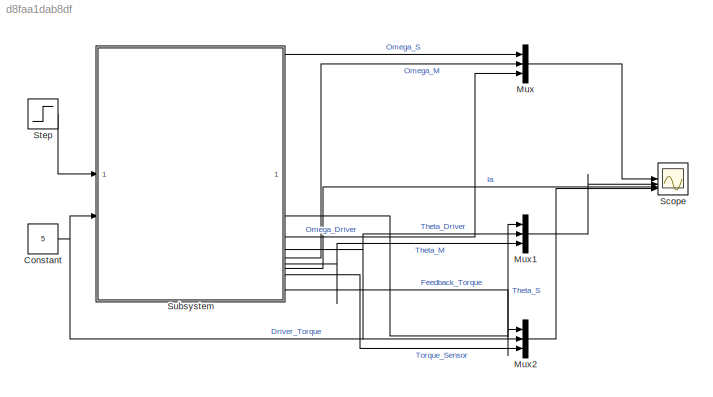
MODEL slx_d8faa1dab8df
KIND model
CONFIG AbsTol = auto
CONFIG EnableMultiTasking = off
CONFIG FixedStep = auto
CONFIG MaxStep = auto
CONFIG MinStep = auto
CONFIG RelTol = 1e-3
CONFIG SampleTimeConstraint = Unconstrained
CONFIG SolverName = VariableStepAuto
CONFIG StartTime = 0.0
CONFIG StopTime = 5
BLOCK [Constant] Constant
  Value = 5
BLOCK [Mux] Mux
  DisplayOption = bar
  Inputs = 3
BLOCK [Mux] Mux1
  DisplayOption = bar
  Inputs = 3
BLOCK [Mux] Mux2
  DisplayOption = bar
  Inputs = 3
BLOCK [Scope] Scope
  Floating = off
  NumInputPorts = 4
  ScopeSpecificationString = Simulink.scopes.TimeScopeBlockCfg('CurrentConfiguration', extmgr.ConfigurationSet(extmgr.Configuration('Core','General UI',true),extmgr.Configuration('Core','Source UI',true),extmgr.Configuration('Sources','WiredSimulink',true),extmgr.Configuration('Visuals','Time Domain',true,'SerializedDisplays',{struct('MinYLimReal','-15.29455','MaxYLimReal','58.05505','YLabelReal','','MinYLimMag','0.00000','Ma...<+3946ch>
BLOCK [Step] Step
  After = 6
  SampleTime = 0
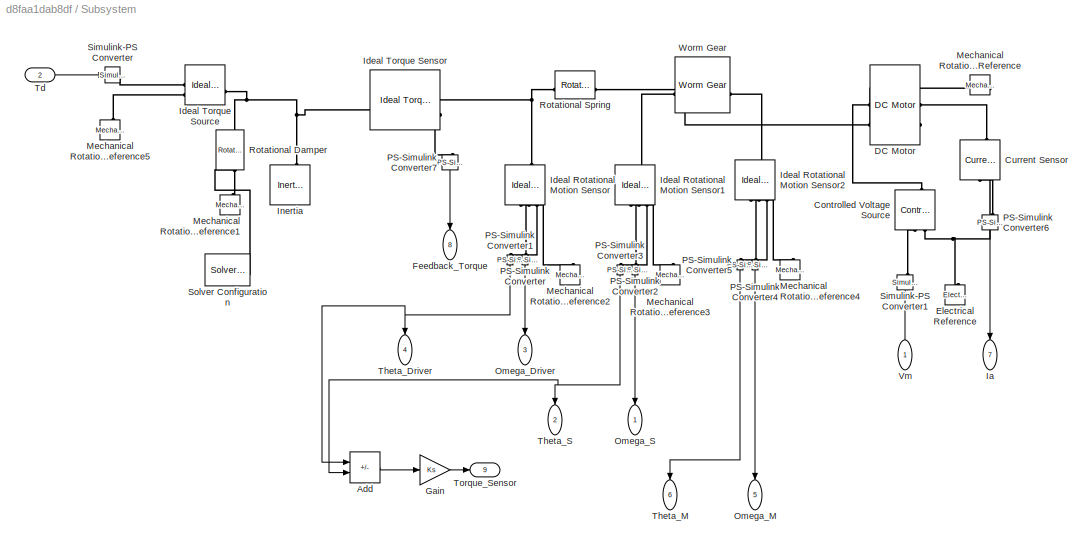
BLOCK [SubSystem] Subsystem
BLOCK [Sum] Subsystem/Add
  IconShape = rectangular
  Inputs = +-
BLOCK [Reference] Subsystem/Controlled Voltage Source  REF=fl_lib/Electrical/Electrical Sources/Controlled Voltage
Source
  NameLocation = right
  SourceBlock = fl_lib/Electrical/Electrical Sources/Controlled Voltage\nSource
  SourceType = Controlled Voltage\nSource
BLOCK [Reference] Subsystem/Current Sensor  REF=fl_lib/Electrical/Electrical Sensors/Current Sensor
  NameLocation = left
  SourceBlock = fl_lib/Electrical/Electrical Sensors/Current Sensor
  SourceType = Current Sensor
BLOCK [Reference] Subsystem/DC Motor  REF=ee_lib/Electromechanical/Brushed Motors/DC Motor
  NameLocation = top
  SourceBlock = ee_lib/Electromechanical/Brushed Motors/DC Motor
  SourceType = DC Motor
BLOCK [Reference] Subsystem/Electrical Reference  REF=fl_lib/Electrical/Electrical Elements/Electrical Reference
  NameLocation = right
  SourceBlock = fl_lib/Electrical/Electrical Elements/Electrical Reference
  SourceType = Electrical Reference
BLOCK [Outport] Subsystem/Feedback_Torque
  NameLocation = left
  Port = 8
BLOCK [Gain] Subsystem/Gain
  Gain = Ks
BLOCK [Outport] Subsystem/Ia
  NameLocation = left
  Port = 7
BLOCK [Reference] Subsystem/Ideal Rotational Motion Sensor  REF=fl_lib/Mechanical/Mechanical Sensors/Ideal Rotational
Motion Sensor
  NameLocation = left
  SourceBlock = fl_lib/Mechanical/Mechanical Sensors/Ideal Rotational\nMotion Sensor
  SourceType = Ideal Rotational\nMotion Sensor
BLOCK [Reference] Subsystem/Ideal Rotational Motion Sensor1  REF=fl_lib/Mechanical/Mechanical Sensors/Ideal Rotational
Motion Sensor
  NameLocation = left
  SourceBlock = fl_lib/Mechanical/Mechanical Sensors/Ideal Rotational\nMotion Sensor
  SourceType = Ideal Rotational\nMotion Sensor
BLOCK [Reference] Subsystem/Ideal Rotational Motion Sensor2  REF=fl_lib/Mechanical/Mechanical Sensors/Ideal Rotational
Motion Sensor
  NameLocation = left
  SourceBlock = fl_lib/Mechanical/Mechanical Sensors/Ideal Rotational\nMotion Sensor
  SourceType = Ideal Rotational\nMotion Sensor
BLOCK [Reference] Subsystem/Ideal Torque Sensor  REF=fl_lib/Mechanical/Mechanical Sensors/Ideal Torque Sensor
  SourceBlock = fl_lib/Mechanical/Mechanical Sensors/Ideal Torque Sensor
  SourceType = Ideal Torque Sensor
BLOCK [Reference] Subsystem/Ideal Torque Source  REF=fl_lib/Mechanical/Mechanical Sources/Ideal Torque Source
  SourceBlock = fl_lib/Mechanical/Mechanical Sources/Ideal Torque Source
  SourceType = Ideal Torque Source
BLOCK [Reference] Subsystem/Inertia  REF=fl_lib/Mechanical/Rotational Elements/Inertia
  NameLocation = right
  SourceBlock = fl_lib/Mechanical/Rotational Elements/Inertia
  SourceType = Inertia
BLOCK [Reference] Subsystem/Mechanical Rotational Reference  REF=fl_lib/Mechanical/Rotational Elements/Mechanical
Rotational Reference
  NameLocation = top
  SourceBlock = fl_lib/Mechanical/Rotational Elements/Mechanical\nRotational Reference
  SourceType = Mechanical\nRotational Reference
BLOCK [Reference] Subsystem/Mechanical Rotational Reference1  REF=fl_lib/Mechanical/Rotational Elements/Mechanical
Rotational Reference
  NameLocation = right
  SourceBlock = fl_lib/Mechanical/Rotational Elements/Mechanical\nRotational Reference
  SourceType = Mechanical\nRotational Reference
BLOCK [Reference] Subsystem/Mechanical Rotational Reference2  REF=fl_lib/Mechanical/Rotational Elements/Mechanical
Rotational Reference
  NameLocation = right
  SourceBlock = fl_lib/Mechanical/Rotational Elements/Mechanical\nRotational Reference
  SourceType = Mechanical\nRotational Reference
BLOCK [Reference] Subsystem/Mechanical Rotational Reference3  REF=fl_lib/Mechanical/Rotational Elements/Mechanical
Rotational Reference
  NameLocation = right
  SourceBlock = fl_lib/Mechanical/Rotational Elements/Mechanical\nRotational Reference
  SourceType = Mechanical\nRotational Reference
BLOCK [Reference] Subsystem/Mechanical Rotational Reference4  REF=fl_lib/Mechanical/Rotational Elements/Mechanical
Rotational Reference
  NameLocation = right
  SourceBlock = fl_lib/Mechanical/Rotational Elements/Mechanical\nRotational Reference
  SourceType = Mechanical\nRotational Reference
BLOCK [Reference] Subsystem/Mechanical Rotational Reference5  REF=fl_lib/Mechanical/Rotational Elements/Mechanical
Rotational Reference
  NameLocation = right
  SourceBlock = fl_lib/Mechanical/Rotational Elements/Mechanical\nRotational Reference
  SourceType = Mechanical\nRotational Reference
BLOCK [Outport] Subsystem/Omega_Driver
  NameLocation = left
  Port = 3
BLOCK [Outport] Subsystem/Omega_M
  NameLocation = left
  Port = 5
BLOCK [Outport] Subsystem/Omega_S
  NameLocation = left
BLOCK [Reference] Subsystem/PS-Simulink Converter  REF=nesl_utility/PS-Simulink
Converter
  NameLocation = left
  SourceBlock = nesl_utility/PS-Simulink\nConverter
  SourceType = PS-Simulink\nConverter
BLOCK [Reference] Subsystem/PS-Simulink Converter1  REF=nesl_utility/PS-Simulink
Converter
  NameLocation = left
  SourceBlock = nesl_utility/PS-Simulink\nConverter
  SourceType = PS-Simulink\nConverter
BLOCK [Reference] Subsystem/PS-Simulink Converter2  REF=nesl_utility/PS-Simulink
Converter
  NameLocation = left
  SourceBlock = nesl_utility/PS-Simulink\nConverter
  SourceType = PS-Simulink\nConverter
BLOCK [Reference] Subsystem/PS-Simulink Converter3  REF=nesl_utility/PS-Simulink
Converter
  NameLocation = left
  SourceBlock = nesl_utility/PS-Simulink\nConverter
  SourceType = PS-Simulink\nConverter
BLOCK [Reference] Subsystem/PS-Simulink Converter4  REF=nesl_utility/PS-Simulink
Converter
  NameLocation = left
  SourceBlock = nesl_utility/PS-Simulink\nConverter
  SourceType = PS-Simulink\nConverter
BLOCK [Reference] Subsystem/PS-Simulink Converter5  REF=nesl_utility/PS-Simulink
Converter
  NameLocation = left
  SourceBlock = nesl_utility/PS-Simulink\nConverter
  SourceType = PS-Simulink\nConverter
BLOCK [Reference] Subsystem/PS-Simulink Converter6  REF=nesl_utility/PS-Simulink
Converter
  NameLocation = left
  SourceBlock = nesl_utility/PS-Simulink\nConverter
  SourceType = PS-Simulink\nConverter
BLOCK [Reference] Subsystem/PS-Simulink Converter7  REF=nesl_utility/PS-Simulink
Converter
  NameLocation = left
  SourceBlock = nesl_utility/PS-Simulink\nConverter
  SourceType = PS-Simulink\nConverter
BLOCK [Reference] Subsystem/Rotational Damper  REF=fl_lib/Mechanical/Rotational Elements/Rotational Damper
  NameLocation = left
  SourceBlock = fl_lib/Mechanical/Rotational Elements/Rotational Damper
  SourceType = Rotational Damper
BLOCK [Reference] Subsystem/Rotational Spring  REF=fl_lib/Mechanical/Rotational Elements/Rotational Spring
  SourceBlock = fl_lib/Mechanical/Rotational Elements/Rotational Spring
  SourceType = Rotational Spring
BLOCK [Reference] Subsystem/Simulink-PS Converter  REF=nesl_utility/Simulink-PS
Converter
  SourceBlock = nesl_utility/Simulink-PS\nConverter
  SourceType = Simulink-PS\nConverter
BLOCK [Reference] Subsystem/Simulink-PS Converter1  REF=nesl_utility/Simulink-PS
Converter
  NameLocation = right
  SourceBlock = nesl_utility/Simulink-PS\nConverter
  SourceType = Simulink-PS\nConverter
BLOCK [Reference] Subsystem/Solver Configuration  REF=nesl_utility/Solver
Configuration
  SourceBlock = nesl_utility/Solver\nConfiguration
  SourceType = Solver\nConfiguration
BLOCK [Inport] Subsystem/Td
  Port = 2
BLOCK [Outport] Subsystem/Theta_Driver
  NameLocation = left
  Port = 4
BLOCK [Outport] Subsystem/Theta_M
  NameLocation = left
  Port = 6
BLOCK [Outport] Subsystem/Theta_S
  NameLocation = left
  Port = 2
BLOCK [Outport] Subsystem/Torque_Sensor
  Port = 9
BLOCK [Inport] Subsystem/Vm
  NameLocation = right
BLOCK [Reference] Subsystem/Worm Gear  REF=sdl_lib/Gears/Worm Gear
  NameLocation = top
  SourceBlock = sdl_lib/Gears/Worm Gear
  SourceType = Worm Gear
NET Constant:1 -> Mux2:2, Subsystem:2
LINE Mux1:1 -> Scope:2
LINE Mux2:1 -> Scope:4
LINE Mux:1 -> Scope:1
LINE Step:1 -> Subsystem:1
LINE Subsystem/Add:1 -> Subsystem/Gain:1
LINE Subsystem/Gain:1 -> Subsystem/Torque_Sensor:1
NET Subsystem/PS-Simulink Converter1:1 -> Subsystem/Add:1, Subsystem/Theta_Driver:1
LINE Subsystem/PS-Simulink Converter2:1 -> Subsystem/Omega_S:1
NET Subsystem/PS-Simulink Converter3:1 -> Subsystem/Add:2, Subsystem/Theta_S:1
LINE Subsystem/PS-Simulink Converter4:1 -> Subsystem/Omega_M:1
LINE Subsystem/PS-Simulink Converter5:1 -> Subsystem/Theta_M:1
LINE Subsystem/PS-Simulink Converter6:1 -> Subsystem/Ia:1
LINE Subsystem/PS-Simulink Converter7:1 -> Subsystem/Feedback_Torque:1
LINE Subsystem/PS-Simulink Converter:1 -> Subsystem/Omega_Driver:1
LINE Subsystem/Td:1 -> Subsystem/Simulink-PS Converter:1
LINE Subsystem/Vm:1 -> Subsystem/Simulink-PS Converter1:1
LINE Subsystem:1 -> Mux:1
LINE Subsystem:2 -> Mux1:1
LINE Subsystem:3 -> Mux:3
LINE Subsystem:4 -> Mux1:2
LINE Subsystem:5 -> Mux:2
LINE Subsystem:6 -> Mux1:3
LINE Subsystem:7 -> Scope:3
LINE Subsystem:8 -> Mux2:1
LINE Subsystem:9 -> Mux2:3
PLINE Subsystem/Controlled Voltage Source:LConn1 -- Subsystem/DC Motor:LConn1
PLINE Subsystem/Controlled Voltage Source:RConn1 -- Subsystem/Simulink-PS Converter1:RConn1
PNET net1: Subsystem/Controlled Voltage Source:RConn2 -- Subsystem/Current Sensor:RConn2 -- Subsystem/Electrical Reference:LConn1
PLINE Subsystem/Current Sensor:LConn1 -- Subsystem/DC Motor:RConn1
PLINE Subsystem/Current Sensor:RConn1 -- Subsystem/PS-Simulink Converter6:LConn1
PNET net2: Subsystem/DC Motor:LConn2 -- Subsystem/Ideal Rotational Motion Sensor2:LConn1 -- Subsystem/Worm Gear:LConn1
PLINE Subsystem/DC Motor:RConn2 -- Subsystem/Mechanical Rotational Reference:LConn1
PNET net3: Subsystem/Ideal Rotational Motion Sensor1:LConn1 -- Subsystem/Rotational Spring:RConn1 -- Subsystem/Worm Gear:RConn1
PLINE Subsystem/Ideal Rotational Motion Sensor1:RConn1 -- Subsystem/Mechanical Rotational Reference3:LConn1
PLINE Subsystem/Ideal Rotational Motion Sensor1:RConn2 -- Subsystem/PS-Simulink Converter2:LConn1
PLINE Subsystem/Ideal Rotational Motion Sensor1:RConn3 -- Subsystem/PS-Simulink Converter3:LConn1
PLINE Subsystem/Ideal Rotational Motion Sensor2:RConn1 -- Subsystem/Mechanical Rotational Reference4:LConn1
PLINE Subsystem/Ideal Rotational Motion Sensor2:RConn2 -- Subsystem/PS-Simulink Converter4:LConn1
PLINE Subsystem/Ideal Rotational Motion Sensor2:RConn3 -- Subsystem/PS-Simulink Converter5:LConn1
PNET net4: Subsystem/Ideal Rotational Motion Sensor:LConn1 -- Subsystem/Ideal Torque Sensor:RConn1 -- Subsystem/Rotational Spring:LConn1
PLINE Subsystem/Ideal Rotational Motion Sensor:RConn1 -- Subsystem/Mechanical Rotational Reference2:LConn1
PLINE Subsystem/Ideal Rotational Motion Sensor:RConn2 -- Subsystem/PS-Simulink Converter:LConn1
PLINE Subsystem/Ideal Rotational Motion Sensor:RConn3 -- Subsystem/PS-Simulink Converter1:LConn1
PNET net5: Subsystem/Ideal Torque Sensor:LConn1 -- Subsystem/Ideal Torque Source:LConn1 -- Subsystem/Inertia:LConn1 -- Subsystem/Rotational Damper:LConn1
PLINE Subsystem/Ideal Torque Sensor:RConn2 -- Subsystem/PS-Simulink Converter7:LConn1
PLINE Subsystem/Ideal Torque Source:RConn1 -- Subsystem/Simulink-PS Converter:RConn1
PLINE Subsystem/Ideal Torque Source:RConn2 -- Subsystem/Mechanical Rotational Reference5:LConn1
PNET net6: Subsystem/Mechanical Rotational Reference1:LConn1 -- Subsystem/Rotational Damper:RConn1 -- Subsystem/Solver Configuration:RConn1
note: NET lines group one-source signal fan-out (src -> all destinations, sorted); 1:1 wires keep LINE; PNET lines group multi-terminal physical nets as a canonical sorted terminal list (undirected conserving connections); 2-terminal nets keep the pairwise PLINE form
